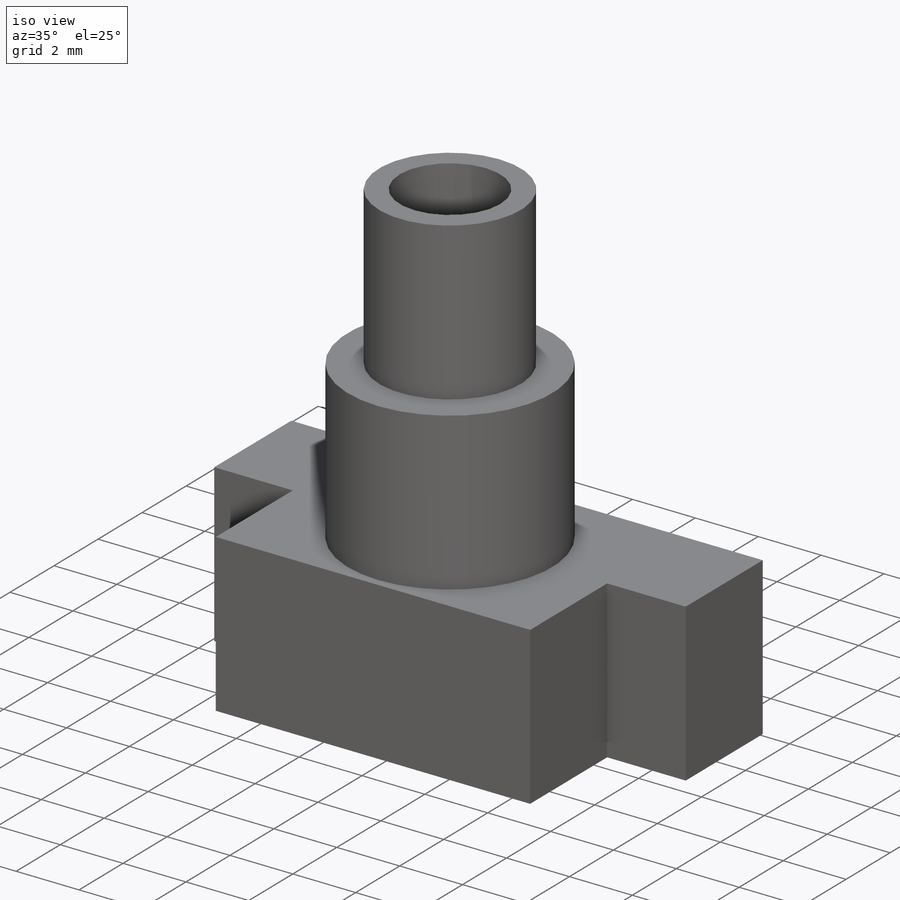
[diagram: iso view]
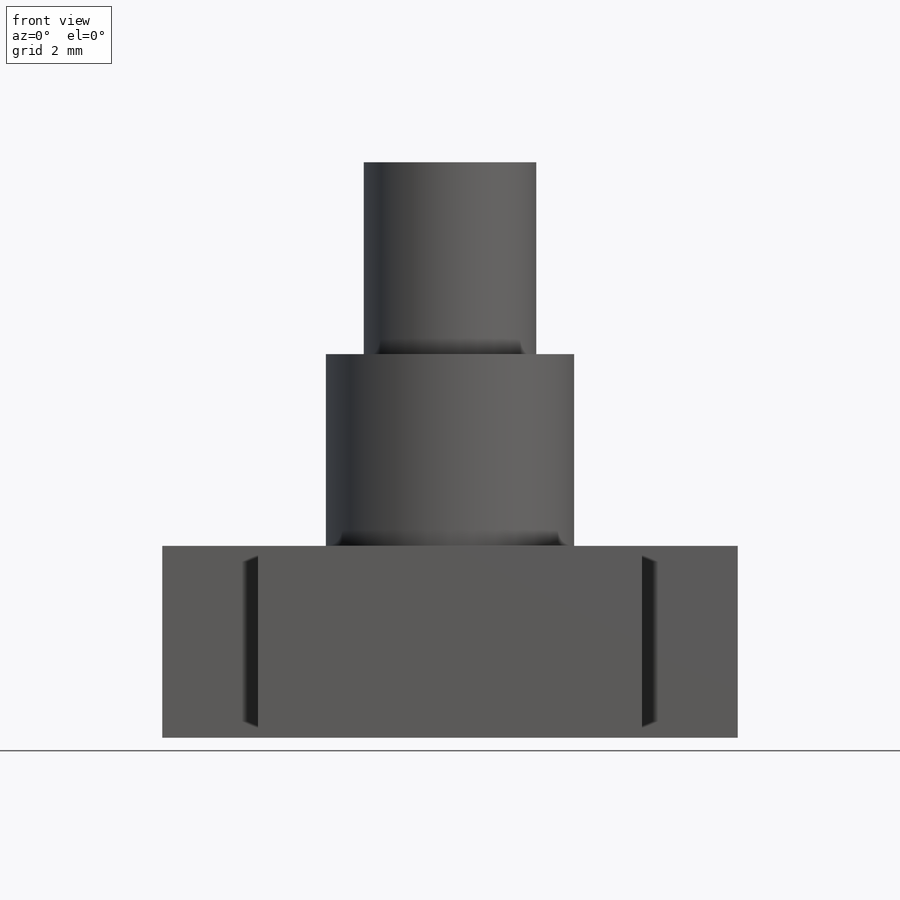
[diagram: front view]
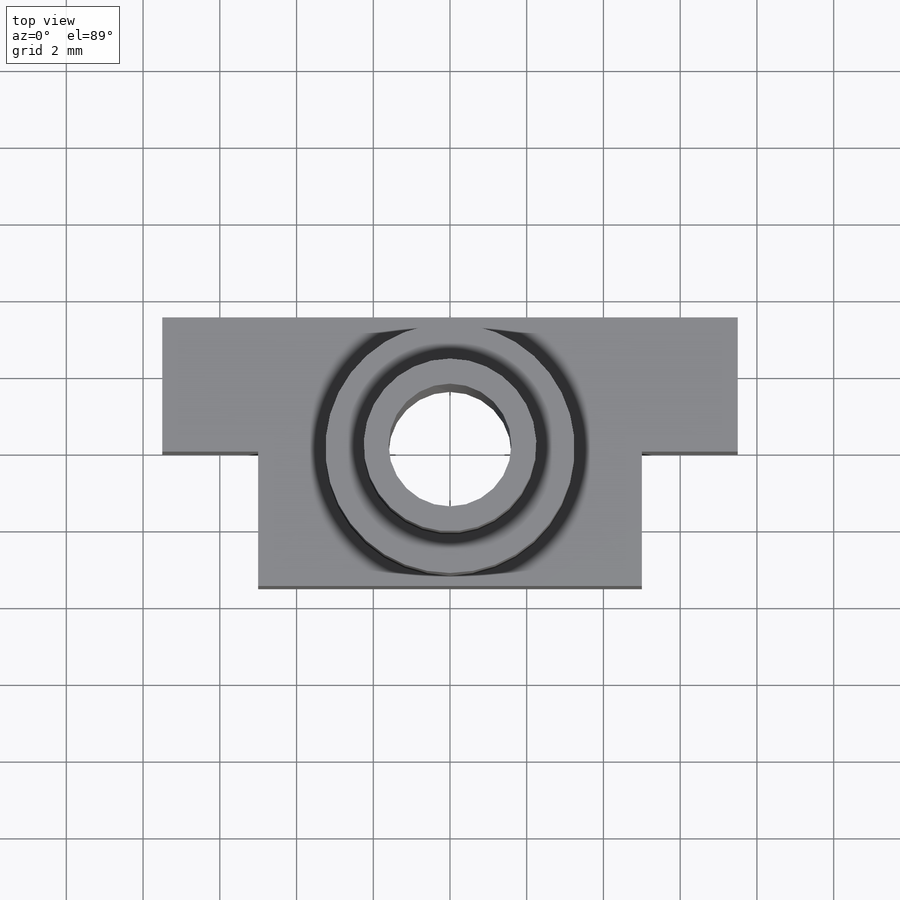
[diagram: top view]
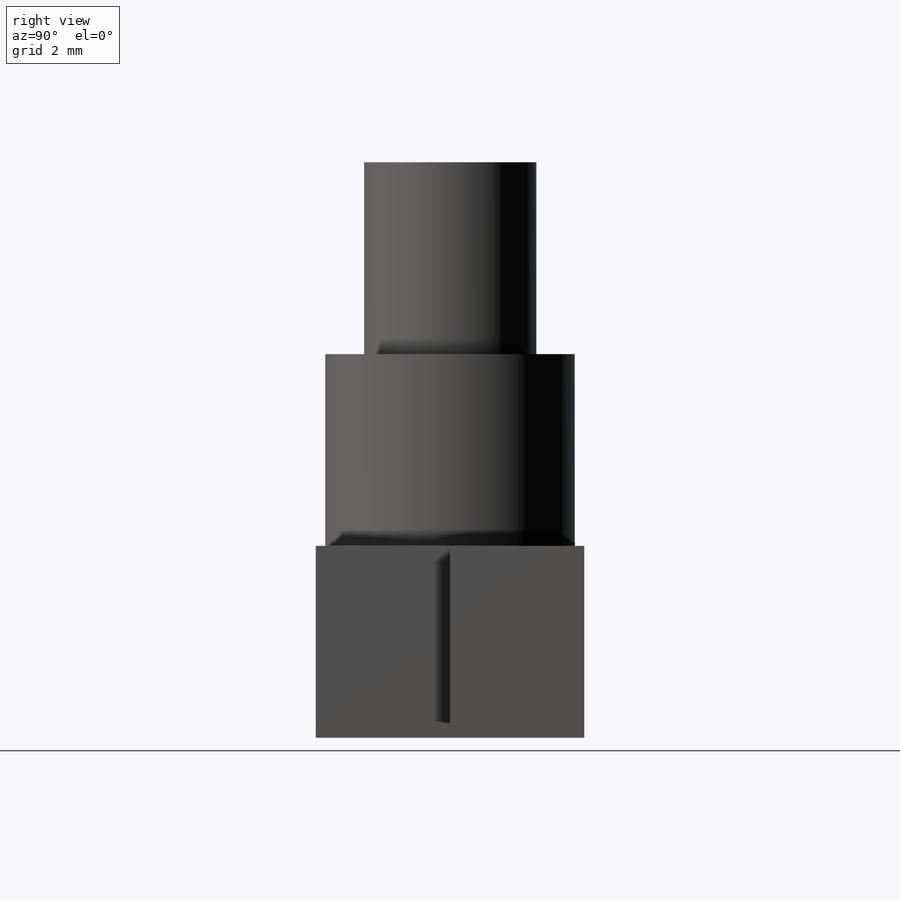
[diagram: right view]
SOLIDWORKS PART (.sldprt)
format: sldprt  version: not decoded by parser v0  size: 186,880 bytes
history: native  units: mm
features: sketch x4, cut_extrude x2, material x1, extrude x1, revolve x1 (+13 scaffold rows collapsed)
feature tree (22):
  scaffold x13  (default folders/planes/origin — collapsed)
  material  "Material <not specified>"
  sketch  "Sketch2"  dims[c1.D1=5.5mm c1.D2=7.0mm c1.D3=10.0mm c1.D4=3.0mm c1.D5=15.0mm c2.D4=0.5mm]
  extrude  "Boss-Extrude1"  Depth=5mm
  sketch  "Sketch3"  dims[D1=5.5mm]
  cut_extrude  "Cut-Extrude1"  Depth=2.5mm
  sketch  "Sketch4"  dims[D1=3.2mm D2=4.5mm D3=5.0mm D4=6.5mm D5=5.0mm]
  revolve  "Revolve1"  Angle=360deg
  sketch  "Sketch5"
  cut_extrude  "Cut-Extrude2"  [1 undecoded]
decode coverage: 6 of 8 modeling features carry decoded parameters
note: 1 parameter value undecoded
note: suppression state not decoded; provenance and decode notes live in map.json
